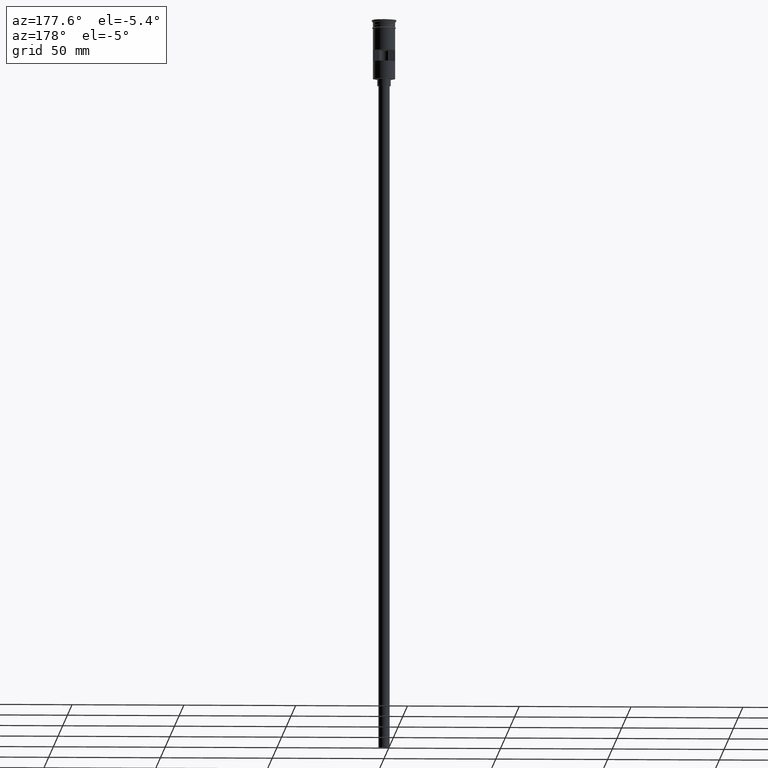
[diagram: clean part render]
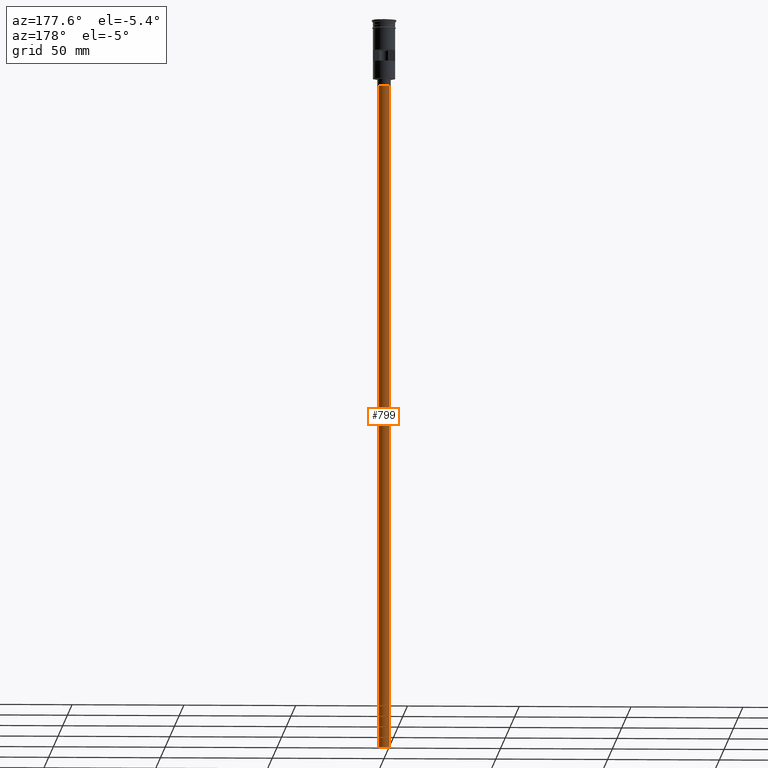
[diagram: same view with one face highlighted and labeled with its STEP entity id]
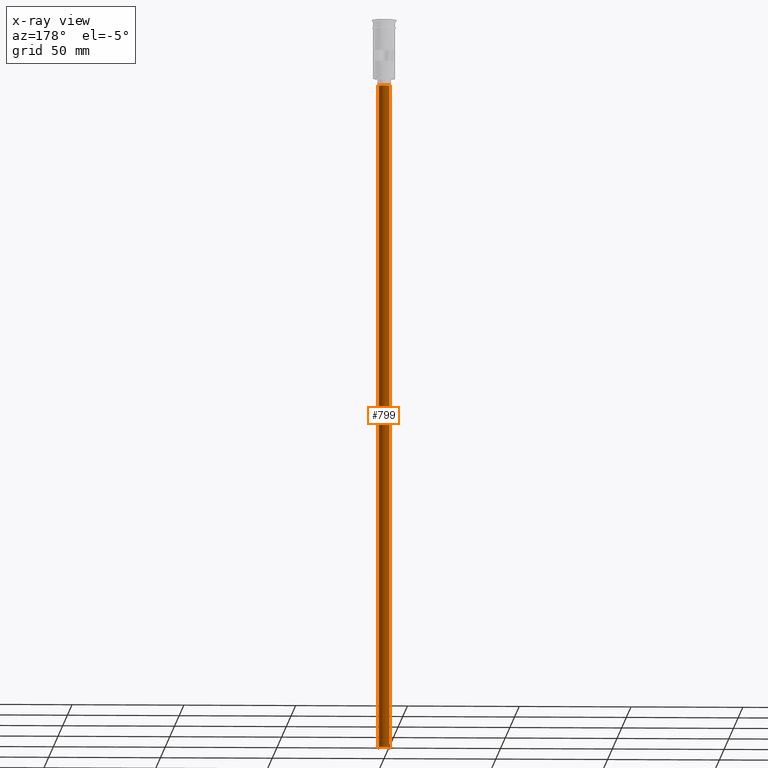
[diagram: x-ray of the same camera — body ghosted, the highlighted face saturated]
A machine part, auxiliary view. The second image highlights one B-rep face of the part: STEP entity #799.
The next image is the same camera in x-ray: the body ghosted, the highlighted face saturated — about 0% of this face is hidden behind the body in this view.
In plain terms, the highlighted cylindrical surface (edge-blend (fillet) strip) has radius 2.5 mm, axis along (-0, -0, 1).
Its self-contained STEP definition (entity closure, byte-faithful):
#121 = EDGE_LOOP ( 'NONE', ( #508, #1212, #1595, #133 ) ) ;
#133 = ORIENTED_EDGE ( 'NONE', *, *, #493, .F. ) ;
#149 = VERTEX_POINT ( 'NONE', #279 ) ;
#186 = AXIS2_PLACEMENT_3D ( 'NONE', #526, #1012, #657 ) ;
#279 = CARTESIAN_POINT ( 'NONE',  ( 2.500000000000000000, 0.000000000000000000, -326.5000000000000000 ) ) ;
#381 = CARTESIAN_POINT ( 'NONE',  ( -2.500000000000000000, 3.061616997868383141E-16, -326.5000000000000000 ) ) ;
#438 = DIRECTION ( 'NONE',  ( -0.000000000000000000, -0.000000000000000000, 1.000000000000000000 ) ) ;
#448 = VECTOR ( 'NONE', #1120, 1000.000000000000000 ) ;
#464 = DIRECTION ( 'NONE',  ( -1.000000000000000000, 0.000000000000000000, 0.000000000000000000 ) ) ;
#493 = EDGE_CURVE ( 'NONE', #149, #901, #632, .T. ) ;
#496 = CIRCLE ( 'NONE', #1006, 2.500000000000000000 ) ;
#508 = ORIENTED_EDGE ( 'NONE', *, *, #630, .F. ) ;
#526 = CARTESIAN_POINT ( 'NONE',  ( 0.000000000000000000, 0.000000000000000000, -29.50000000000000000 ) ) ;
#565 = FACE_OUTER_BOUND ( 'NONE', #121, .T. ) ;
#630 = EDGE_CURVE ( 'NONE', #1061, #149, #496, .T. ) ;
#632 = LINE ( 'NONE', #1114, #448 ) ;
#647 = CIRCLE ( 'NONE', #186, 2.500000000000000000 ) ;
#657 = DIRECTION ( 'NONE',  ( -1.000000000000000000, 0.000000000000000000, 0.000000000000000000 ) ) ;
#659 = CARTESIAN_POINT ( 'NONE',  ( -2.500000000000000000, 3.061616997868383141E-16, -29.50000000000000000 ) ) ;
#791 = AXIS2_PLACEMENT_3D ( 'NONE', #1305, #438, #920 ) ;
#799 = ADVANCED_FACE ( 'NONE', ( #565 ), #805, .T. ) ;
#805 = CYLINDRICAL_SURFACE ( 'NONE', #791, 2.500000000000000000 ) ;
#878 = EDGE_CURVE ( 'NONE', #1061, #1572, #1351, .T. ) ;
#901 = VERTEX_POINT ( 'NONE', #1596 ) ;
#915 = CARTESIAN_POINT ( 'NONE',  ( 0.000000000000000000, 0.000000000000000000, -326.5000000000000000 ) ) ;
#920 = DIRECTION ( 'NONE',  ( 1.000000000000000000, 0.000000000000000000, 0.000000000000000000 ) ) ;
#980 = VECTOR ( 'NONE', #1471, 1000.000000000000000 ) ;
#1006 = AXIS2_PLACEMENT_3D ( 'NONE', #915, #1259, #464 ) ;
#1012 = DIRECTION ( 'NONE',  ( 0.000000000000000000, 0.000000000000000000, -1.000000000000000000 ) ) ;
#1061 = VERTEX_POINT ( 'NONE', #381 ) ;
#1100 = CARTESIAN_POINT ( 'NONE',  ( -2.500000000000000000, 3.061616997868383141E-16, -326.5000000000000000 ) ) ;
#1114 = CARTESIAN_POINT ( 'NONE',  ( 2.500000000000000000, 0.000000000000000000, -326.5000000000000000 ) ) ;
#1120 = DIRECTION ( 'NONE',  ( -0.000000000000000000, -0.000000000000000000, 1.000000000000000000 ) ) ;
#1212 = ORIENTED_EDGE ( 'NONE', *, *, #878, .T. ) ;
#1259 = DIRECTION ( 'NONE',  ( 0.000000000000000000, 0.000000000000000000, -1.000000000000000000 ) ) ;
#1303 = EDGE_CURVE ( 'NONE', #1572, #901, #647, .T. ) ;
#1305 = CARTESIAN_POINT ( 'NONE',  ( 0.000000000000000000, 0.000000000000000000, -326.5000000000000000 ) ) ;
#1351 = LINE ( 'NONE', #1100, #980 ) ;
#1471 = DIRECTION ( 'NONE',  ( -0.000000000000000000, -0.000000000000000000, 1.000000000000000000 ) ) ;
#1572 = VERTEX_POINT ( 'NONE', #659 ) ;
#1595 = ORIENTED_EDGE ( 'NONE', *, *, #1303, .T. ) ;
#1596 = CARTESIAN_POINT ( 'NONE',  ( 2.500000000000000000, 0.000000000000000000, -29.50000000000000000 ) ) ;